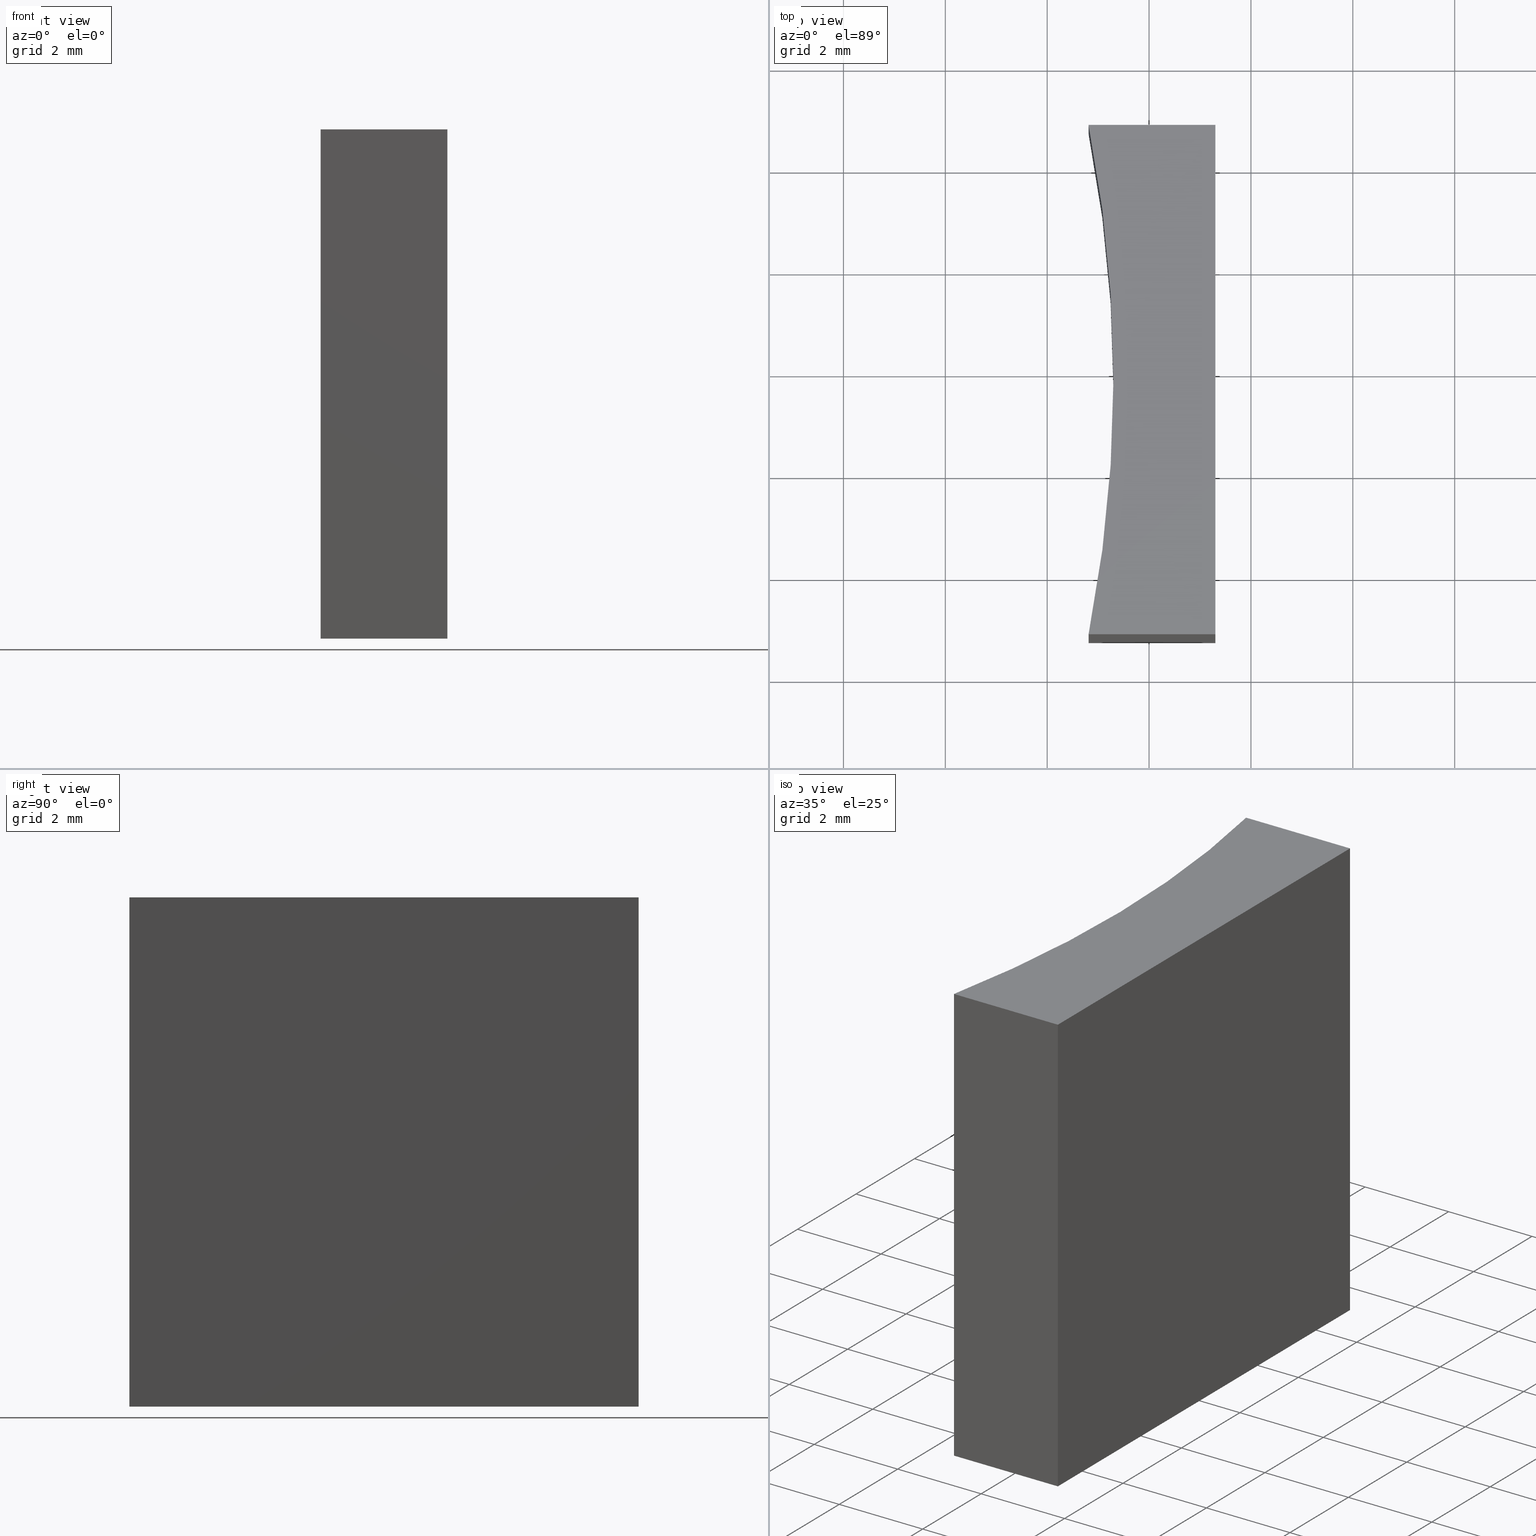
[diagram: canonical four-view strip — front | top / right | iso, engineering-drawing reading convention]
A machine part, canonical four-view strip (front | top / right | iso — engineering-drawing reading convention). The complete STEP part file that produces these views, byte-faithful:
ISO-10303-21;
HEADER;
FILE_DESCRIPTION (( 'STEP AP203' ),
    '1' );
FILE_NAME ('155566.STEP',
    '2024-05-13T05:53:00',
    ( '' ),
    ( '' ),
    'SwSTEP 2.0',
    'SolidWorks 2020',
    '' );
FILE_SCHEMA (( 'CONFIG_CONTROL_DESIGN' ));
ENDSEC;

DATA;
#1 = DIRECTION ( 'NONE',  ( 0.000000000000000000, -0.000000000000000000, -1.000000000000000000 ) ) ;
#2 = APPROVAL_PERSON_ORGANIZATION ( #64, #202, #136 ) ;
#3 =( LENGTH_UNIT ( ) NAMED_UNIT ( * ) SI_UNIT ( .MILLI., .METRE. ) );
#4 = APPROVAL_DATE_TIME ( #208, #202 ) ;
#5 = PERSON_AND_ORGANIZATION_ROLE ( 'classification_officer' ) ;
#6 = APPROVAL_STATUS ( 'not_yet_approved' ) ;
#7 = APPLICATION_CONTEXT ( 'configuration controlled 3d designs of mechanical parts and assemblies' ) ;
#8 = ORIENTED_EDGE ( 'NONE', *, *, #78, .T. ) ;
#9 = CC_DESIGN_PERSON_AND_ORGANIZATION_ASSIGNMENT ( #81, #168, ( #135 ) ) ;
#10 = EDGE_LOOP ( 'NONE', ( #90, #48, #211, #121 ) ) ;
#11 = CLOSED_SHELL ( 'NONE', ( #35, #13, #180, #126, #87, #106 ) ) ;
#12 = ORIENTED_EDGE ( 'NONE', *, *, #55, .F. ) ;
#13 = ADVANCED_FACE ( 'NONE', ( #139 ), #123, .F. ) ;
#14 = EDGE_LOOP ( 'NONE', ( #26, #127, #171, #172 ) ) ;
#15 = CC_DESIGN_APPROVAL ( #18, ( #49 ) ) ;
#16 = EDGE_LOOP ( 'NONE', ( #142, #12, #153, #8 ) ) ;
#17 = LINE ( 'NONE', #20, #134 ) ;
#18 = APPROVAL ( #6, 'δָ��' ) ;
#19 = CARTESIAN_POINT ( 'NONE',  ( 8.812458246586681199, -11.23237824220924530, 0.000000000000000000 ) ) ;
#20 = CARTESIAN_POINT ( 'NONE',  ( 8.812458246586677646, -1.232378242209244856, 0.000000000000000000 ) ) ;
#21 = VECTOR ( 'NONE', #221, 1000.000000000000000 ) ;
#22 = DIRECTION ( 'NONE',  ( -1.000000000000000000, 0.000000000000000000, 0.000000000000000000 ) ) ;
#23 = PERSON_AND_ORGANIZATION ( #53, #175 ) ;
#24 = APPROVAL_STATUS ( 'not_yet_approved' ) ;
#25 = AXIS2_PLACEMENT_3D ( 'NONE', #218, #223, #116 ) ;
#26 = ORIENTED_EDGE ( 'NONE', *, *, #215, .T. ) ;
#27 = DIRECTION ( 'NONE',  ( 0.000000000000000000, 1.000000000000000000, 0.000000000000000000 ) ) ;
#28 = AXIS2_PLACEMENT_3D ( 'NONE', #96, #109, #131 ) ;
#29 = CALENDAR_DATE ( 2024, 13, 5 ) ;
#30 = LOCAL_TIME ( 13, 53, 0.000000000000000000, #151 ) ;
#31 = PLANE ( 'NONE',  #89 ) ;
#32 = DIRECTION ( 'NONE',  ( 1.000000000000000000, 0.000000000000000000, 0.000000000000000000 ) ) ;
#33 = LINE ( 'NONE', #19, #98 ) ;
#34 = FACE_OUTER_BOUND ( 'NONE', #229, .T. ) ;
#35 = ADVANCED_FACE ( 'NONE', ( #70 ), #140, .F. ) ;
#36 = CARTESIAN_POINT ( 'NONE',  ( 8.812458246586677646, -1.232378242209244856, 10.00000000000000000 ) ) ;
#37 =( NAMED_UNIT ( * ) SI_UNIT ( $, .STERADIAN. ) SOLID_ANGLE_UNIT ( ) );
#38 = APPLICATION_PROTOCOL_DEFINITION ( 'international standard', 'config_control_design', 1994, #93 ) ;
#39 = COORDINATED_UNIVERSAL_TIME_OFFSET ( 8, 0, .AHEAD. ) ;
#40 = AXIS2_PLACEMENT_3D ( 'NONE', #190, #27, #155 ) ;
#41 = CALENDAR_DATE ( 2024, 13, 5 ) ;
#42 = PERSON_AND_ORGANIZATION_ROLE ( 'creator' ) ;
#43 = CC_DESIGN_SECURITY_CLASSIFICATION ( #188, ( #104 ) ) ;
#44 = ORIENTED_EDGE ( 'NONE', *, *, #78, .F. ) ;
#45 = ORIENTED_EDGE ( 'NONE', *, *, #102, .T. ) ;
#46 = ORIENTED_EDGE ( 'NONE', *, *, #102, .F. ) ;
#47 = ORIENTED_EDGE ( 'NONE', *, *, #55, .T. ) ;
#48 = ORIENTED_EDGE ( 'NONE', *, *, #141, .F. ) ;
#49 = PRODUCT_DEFINITION ( 'δ֪', '', #104, #203 ) ;
#50 = DIRECTION ( 'NONE',  ( 0.000000000000000000, -1.000000000000000000, 0.000000000000000000 ) ) ;
#51 = DIRECTION ( 'NONE',  ( -0.000000000000000000, -0.000000000000000000, -1.000000000000000000 ) ) ;
#52 = PLANE ( 'NONE',  #192 ) ;
#53 = PERSON ( 'δָ��', 'δָ��', 'δָ��', ('δָ��'), ('δָ��'), ('δָ��') ) ;
#54 = DIRECTION ( 'NONE',  ( 0.000000000000000000, 0.000000000000000000, 1.000000000000000000 ) ) ;
#55 = EDGE_CURVE ( 'NONE', #107, #189, #219, .T. ) ;
#56 = CC_DESIGN_APPROVAL ( #202, ( #104 ) ) ;
#57 = FACE_OUTER_BOUND ( 'NONE', #14, .T. ) ;
#58 = DATE_AND_TIME ( #86, #209 ) ;
#59 = CC_DESIGN_DATE_AND_TIME_ASSIGNMENT ( #58, #228, ( #49 ) ) ;
#60 = APPROVAL_ROLE ( '' ) ;
#61 = APPLICATION_PROTOCOL_DEFINITION ( 'international standard', 'config_control_design', 1994, #7 ) ;
#62 = MANIFOLD_SOLID_BREP ( '͹̨-����1', #11 ) ;
#63 = VECTOR ( 'NONE', #79, 1000.000000000000000 ) ;
#64 = PERSON_AND_ORGANIZATION ( #53, #175 ) ;
#65 = EDGE_CURVE ( 'NONE', #191, #189, #178, .T. ) ;
#66 = APPROVAL_DATE_TIME ( #170, #120 ) ;
#67 = EDGE_LOOP ( 'NONE', ( #231, #46, #232, #157 ) ) ;
#68 = VERTEX_POINT ( 'NONE', #201 ) ;
#69 = VECTOR ( 'NONE', #146, 1000.000000000000000 ) ;
#70 = FACE_OUTER_BOUND ( 'NONE', #10, .T. ) ;
#71 = VERTEX_POINT ( 'NONE', #112 ) ;
#72 = CC_DESIGN_PERSON_AND_ORGANIZATION_ASSIGNMENT ( #205, #42, ( #104 ) ) ;
#73 = DIRECTION ( 'NONE',  ( 1.734723475976807094E-16, -1.000000000000000000, 0.000000000000000000 ) ) ;
#74 = LINE ( 'NONE', #77, #217 ) ;
#75 = DIRECTION ( 'NONE',  ( 1.000000000000000000, 0.000000000000000000, -0.000000000000000000 ) ) ;
#76 = VECTOR ( 'NONE', #179, 1000.000000000000000 ) ;
#77 = CARTESIAN_POINT ( 'NONE',  ( 11.30245824658667964, -11.23237824220924530, 10.00000000000000000 ) ) ;
#78 = EDGE_CURVE ( 'NONE', #214, #191, #74, .T. ) ;
#79 = DIRECTION ( 'NONE',  ( -0.000000000000000000, -0.000000000000000000, -1.000000000000000000 ) ) ;
#80 = VECTOR ( 'NONE', #238, 1000.000000000000000 ) ;
#81 = PERSON_AND_ORGANIZATION ( #53, #175 ) ;
#82 = UNCERTAINTY_MEASURE_WITH_UNIT (LENGTH_MEASURE( 1.000000000000000082E-05 ), #3, 'distance_accuracy_value', 'NONE');
#83 =( NAMED_UNIT ( * ) PLANE_ANGLE_UNIT ( ) SI_UNIT ( $, .RADIAN. ) );
#84 = DATE_TIME_ROLE ( 'classification_date' ) ;
#85 = PERSON_AND_ORGANIZATION ( #53, #175 ) ;
#86 = CALENDAR_DATE ( 2024, 13, 5 ) ;
#87 = ADVANCED_FACE ( 'NONE', ( #57 ), #31, .T. ) ;
#88 = ORIENTED_EDGE ( 'NONE', *, *, #141, .T. ) ;
#89 = AXIS2_PLACEMENT_3D ( 'NONE', #200, #54, #75 ) ;
#90 = ORIENTED_EDGE ( 'NONE', *, *, #235, .T. ) ;
#91 = ORIENTED_EDGE ( 'NONE', *, *, #226, .F. ) ;
#92 = LOCAL_TIME ( 13, 53, 0.000000000000000000, #152 ) ;
#93 = APPLICATION_CONTEXT ( 'configuration controlled 3d designs of mechanical parts and assemblies' ) ;
#94 = CARTESIAN_POINT ( 'NONE',  ( 8.812458246586681199, -11.23237824220924530, 10.00000000000000000 ) ) ;
#95 = DIRECTION ( 'NONE',  ( 1.000000000000000000, 0.000000000000000000, 0.000000000000000000 ) ) ;
#96 = CARTESIAN_POINT ( 'NONE',  ( -16.54937331187928606, -6.232378242209254182, 0.000000000000000000 ) ) ;
#97 = LINE ( 'NONE', #199, #63 ) ;
#98 = VECTOR ( 'NONE', #95, 1000.000000000000000 ) ;
#99 = LINE ( 'NONE', #94, #21 ) ;
#100 = PRODUCT_RELATED_PRODUCT_CATEGORY ( 'detail', '', ( #135 ) ) ;
#101 = APPROVAL_PERSON_ORGANIZATION ( #224, #18, #206 ) ;
#102 = EDGE_CURVE ( 'NONE', #189, #71, #17, .T. ) ;
#103 = PERSON_AND_ORGANIZATION ( #53, #175 ) ;
#104 = PRODUCT_DEFINITION_FORMATION_WITH_SPECIFIED_SOURCE ( '�κ�', '', #135, .NOT_KNOWN. ) ;
#105 = DIRECTION ( 'NONE',  ( 0.000000000000000000, 0.000000000000000000, 1.000000000000000000 ) ) ;
#106 = ADVANCED_FACE ( 'NONE', ( #132 ), #144, .F. ) ;
#107 = VERTEX_POINT ( 'NONE', #237 ) ;
#108 =( GEOMETRIC_REPRESENTATION_CONTEXT ( 3 ) GLOBAL_UNCERTAINTY_ASSIGNED_CONTEXT ( ( #82 ) ) GLOBAL_UNIT_ASSIGNED_CONTEXT ( ( #3, #83, #37 ) ) REPRESENTATION_CONTEXT ( 'NONE', 'WORKASPACE' ) );
#109 = DIRECTION ( 'NONE',  ( 0.000000000000000000, 0.000000000000000000, 1.000000000000000000 ) ) ;
#110 = LINE ( 'NONE', #161, #80 ) ;
#111 = CARTESIAN_POINT ( 'NONE',  ( 11.30245824658667786, -1.232378242209244856, 10.00000000000000000 ) ) ;
#112 = CARTESIAN_POINT ( 'NONE',  ( 8.812458246586677646, -1.232378242209244856, 0.000000000000000000 ) ) ;
#113 = CARTESIAN_POINT ( 'NONE',  ( 11.30245824658667786, -1.232378242209244856, 10.00000000000000000 ) ) ;
#114 = DATE_AND_TIME ( #204, #137 ) ;
#115 = DATE_AND_TIME ( #41, #92 ) ;
#116 = DIRECTION ( 'NONE',  ( 1.000000000000000000, 0.000000000000000000, 0.000000000000000000 ) ) ;
#117 = EDGE_CURVE ( 'NONE', #68, #214, #99, .T. ) ;
#118 = APPROVAL_DATE_TIME ( #115, #18 ) ;
#119 = CALENDAR_DATE ( 2024, 13, 5 ) ;
#120 = APPROVAL ( #24, 'δָ��' ) ;
#121 = ORIENTED_EDGE ( 'NONE', *, *, #226, .T. ) ;
#122 = ADVANCED_BREP_SHAPE_REPRESENTATION ( '155566', ( #62, #195 ), #108 ) ;
#123 = PLANE ( 'NONE',  #40 ) ;
#124 = ORIENTED_EDGE ( 'NONE', *, *, #164, .F. ) ;
#125 = AXIS2_PLACEMENT_3D ( 'NONE', #111, #162, #73 ) ;
#126 = ADVANCED_FACE ( 'NONE', ( #34 ), #52, .F. ) ;
#127 = ORIENTED_EDGE ( 'NONE', *, *, #117, .T. ) ;
#128 = LINE ( 'NONE', #143, #69 ) ;
#129 = CARTESIAN_POINT ( 'NONE',  ( 11.30245824658667964, -11.23237824220924530, 0.000000000000000000 ) ) ;
#130 = DIRECTION ( 'NONE',  ( -0.000000000000000000, -0.000000000000000000, -1.000000000000000000 ) ) ;
#131 = DIRECTION ( 'NONE',  ( 1.000000000000000000, 0.000000000000000000, -0.000000000000000000 ) ) ;
#132 = FACE_OUTER_BOUND ( 'NONE', #67, .T. ) ;
#133 = APPROVAL_STATUS ( 'not_yet_approved' ) ;
#134 = VECTOR ( 'NONE', #181, 1000.000000000000000 ) ;
#135 = PRODUCT ( '155566', '155566', '', ( #167 ) ) ;
#136 = APPROVAL_ROLE ( '' ) ;
#137 = LOCAL_TIME ( 13, 53, 0.000000000000000000, #165 ) ;
#138 = ORIENTED_EDGE ( 'NONE', *, *, #156, .T. ) ;
#139 = FACE_OUTER_BOUND ( 'NONE', #176, .T. ) ;
#140 = CYLINDRICAL_SURFACE ( 'NONE', #185, 25.85000000000000497 ) ;
#141 = EDGE_CURVE ( 'NONE', #68, #234, #97, .T. ) ;
#142 = ORIENTED_EDGE ( 'NONE', *, *, #65, .T. ) ;
#143 = CARTESIAN_POINT ( 'NONE',  ( 11.30245824658667786, -1.232378242209244856, 10.00000000000000000 ) ) ;
#144 = PLANE ( 'NONE',  #28 ) ;
#145 = CARTESIAN_POINT ( 'NONE',  ( 8.812458246586681199, -11.23237824220924530, 0.000000000000000000 ) ) ;
#146 = DIRECTION ( 'NONE',  ( -1.734723475976807094E-16, 1.000000000000000000, -0.000000000000000000 ) ) ;
#147 = LINE ( 'NONE', #36, #227 ) ;
#148 = CC_DESIGN_APPROVAL ( #120, ( #188 ) ) ;
#149 = DIRECTION ( 'NONE',  ( 1.000000000000000000, 0.000000000000000000, 0.000000000000000000 ) ) ;
#150 = PERSON_AND_ORGANIZATION_ROLE ( 'design_supplier' ) ;
#151 = COORDINATED_UNIVERSAL_TIME_OFFSET ( 8, 0, .AHEAD. ) ;
#152 = COORDINATED_UNIVERSAL_TIME_OFFSET ( 8, 0, .AHEAD. ) ;
#153 = ORIENTED_EDGE ( 'NONE', *, *, #207, .F. ) ;
#154 = SHAPE_DEFINITION_REPRESENTATION ( #194, #122 ) ;
#155 = DIRECTION ( 'NONE',  ( 0.000000000000000000, -0.000000000000000000, 1.000000000000000000 ) ) ;
#156 = EDGE_CURVE ( 'NONE', #234, #191, #33, .T. ) ;
#157 = ORIENTED_EDGE ( 'NONE', *, *, #156, .F. ) ;
#158 = FACE_OUTER_BOUND ( 'NONE', #16, .T. ) ;
#159 = CC_DESIGN_PERSON_AND_ORGANIZATION_ASSIGNMENT ( #23, #5, ( #188 ) ) ;
#160 = CARTESIAN_POINT ( 'NONE',  ( 8.812458246586677646, -1.232378242209244856, 10.00000000000000000 ) ) ;
#161 = CARTESIAN_POINT ( 'NONE',  ( 8.812458246586677646, -1.232378242209244856, 10.00000000000000000 ) ) ;
#162 = DIRECTION ( 'NONE',  ( -1.000000000000000000, -1.734723475976807094E-16, 0.000000000000000000 ) ) ;
#163 = CARTESIAN_POINT ( 'NONE',  ( 8.812458246586677646, -1.232378242209244856, 10.00000000000000000 ) ) ;
#164 = EDGE_CURVE ( 'NONE', #107, #193, #147, .T. ) ;
#165 = COORDINATED_UNIVERSAL_TIME_OFFSET ( 8, 0, .AHEAD. ) ;
#166 = AXIS2_PLACEMENT_3D ( 'NONE', #177, #51, #32 ) ;
#167 = MECHANICAL_CONTEXT ( 'NONE', #7, 'mechanical' ) ;
#168 = PERSON_AND_ORGANIZATION_ROLE ( 'design_owner' ) ;
#169 = PERSON_AND_ORGANIZATION ( #53, #175 ) ;
#170 = DATE_AND_TIME ( #29, #30 ) ;
#171 = ORIENTED_EDGE ( 'NONE', *, *, #207, .T. ) ;
#172 = ORIENTED_EDGE ( 'NONE', *, *, #164, .T. ) ;
#173 = VECTOR ( 'NONE', #130, 1000.000000000000000 ) ;
#174 = CC_DESIGN_PERSON_AND_ORGANIZATION_ASSIGNMENT ( #169, #187, ( #49 ) ) ;
#175 = ORGANIZATION ( 'δָ��', 'δָ��', '' ) ;
#176 = EDGE_LOOP ( 'NONE', ( #138, #44, #210, #88 ) ) ;
#177 = CARTESIAN_POINT ( 'NONE',  ( -16.54937331187928606, -6.232378242209254182, 10.00000000000000000 ) ) ;
#178 = LINE ( 'NONE', #197, #76 ) ;
#179 = DIRECTION ( 'NONE',  ( -1.734723475976807094E-16, 1.000000000000000000, -0.000000000000000000 ) ) ;
#180 = ADVANCED_FACE ( 'NONE', ( #158 ), #236, .F. ) ;
#181 = DIRECTION ( 'NONE',  ( -1.000000000000000000, -0.000000000000000000, -0.000000000000000000 ) ) ;
#182 = DIRECTION ( 'NONE',  ( -1.000000000000000000, -0.000000000000000000, -0.000000000000000000 ) ) ;
#183 = CC_DESIGN_DATE_AND_TIME_ASSIGNMENT ( #114, #84, ( #188 ) ) ;
#184 = COORDINATED_UNIVERSAL_TIME_OFFSET ( 8, 0, .AHEAD. ) ;
#185 = AXIS2_PLACEMENT_3D ( 'NONE', #213, #212, #22 ) ;
#186 = SECURITY_CLASSIFICATION_LEVEL ( 'unclassified' ) ;
#187 = PERSON_AND_ORGANIZATION_ROLE ( 'creator' ) ;
#188 = SECURITY_CLASSIFICATION ( '', '', #186 ) ;
#189 = VERTEX_POINT ( 'NONE', #239 ) ;
#190 = CARTESIAN_POINT ( 'NONE',  ( 8.812458246586681199, -11.23237824220924530, 10.00000000000000000 ) ) ;
#191 = VERTEX_POINT ( 'NONE', #129 ) ;
#192 = AXIS2_PLACEMENT_3D ( 'NONE', #163, #50, #1 ) ;
#193 = VERTEX_POINT ( 'NONE', #160 ) ;
#194 = PRODUCT_DEFINITION_SHAPE ( 'NONE', 'NONE',  #49 ) ;
#195 = AXIS2_PLACEMENT_3D ( 'NONE', #225, #105, #149 ) ;
#196 = DIRECTION ( 'NONE',  ( -0.000000000000000000, -0.000000000000000000, -1.000000000000000000 ) ) ;
#197 = CARTESIAN_POINT ( 'NONE',  ( 11.30245824658667786, -1.232378242209244856, 0.000000000000000000 ) ) ;
#198 = CIRCLE ( 'NONE', #166, 25.85000000000000497 ) ;
#199 = CARTESIAN_POINT ( 'NONE',  ( 8.812458246586681199, -11.23237824220924530, 10.00000000000000000 ) ) ;
#200 = CARTESIAN_POINT ( 'NONE',  ( -16.54937331187928606, -6.232378242209254182, 10.00000000000000000 ) ) ;
#201 = CARTESIAN_POINT ( 'NONE',  ( 8.812458246586681199, -11.23237824220924530, 10.00000000000000000 ) ) ;
#202 = APPROVAL ( #133, 'δָ��' ) ;
#203 = DESIGN_CONTEXT ( 'detailed design', #93, 'design' ) ;
#204 = CALENDAR_DATE ( 2024, 13, 5 ) ;
#205 = PERSON_AND_ORGANIZATION ( #53, #175 ) ;
#206 = APPROVAL_ROLE ( '' ) ;
#207 = EDGE_CURVE ( 'NONE', #214, #107, #128, .T. ) ;
#208 = DATE_AND_TIME ( #119, #233 ) ;
#209 = LOCAL_TIME ( 13, 53, 0.000000000000000000, #39 ) ;
#210 = ORIENTED_EDGE ( 'NONE', *, *, #117, .F. ) ;
#211 = ORIENTED_EDGE ( 'NONE', *, *, #215, .F. ) ;
#212 = DIRECTION ( 'NONE',  ( -0.000000000000000000, -0.000000000000000000, -1.000000000000000000 ) ) ;
#213 = CARTESIAN_POINT ( 'NONE',  ( -16.54937331187928606, -6.232378242209254182, 10.00000000000000000 ) ) ;
#214 = VERTEX_POINT ( 'NONE', #216 ) ;
#215 = EDGE_CURVE ( 'NONE', #193, #68, #198, .T. ) ;
#216 = CARTESIAN_POINT ( 'NONE',  ( 11.30245824658667964, -11.23237824220924530, 10.00000000000000000 ) ) ;
#217 = VECTOR ( 'NONE', #196, 1000.000000000000000 ) ;
#218 = CARTESIAN_POINT ( 'NONE',  ( -16.54937331187928606, -6.232378242209254182, 0.000000000000000000 ) ) ;
#219 = LINE ( 'NONE', #113, #173 ) ;
#220 = APPROVAL_PERSON_ORGANIZATION ( #85, #120, #60 ) ;
#221 = DIRECTION ( 'NONE',  ( 1.000000000000000000, 0.000000000000000000, 0.000000000000000000 ) ) ;
#222 = CC_DESIGN_PERSON_AND_ORGANIZATION_ASSIGNMENT ( #103, #150, ( #104 ) ) ;
#223 = DIRECTION ( 'NONE',  ( -0.000000000000000000, -0.000000000000000000, -1.000000000000000000 ) ) ;
#224 = PERSON_AND_ORGANIZATION ( #53, #175 ) ;
#225 = CARTESIAN_POINT ( 'NONE',  ( 0.000000000000000000, 0.000000000000000000, 0.000000000000000000 ) ) ;
#226 = EDGE_CURVE ( 'NONE', #193, #71, #110, .T. ) ;
#227 = VECTOR ( 'NONE', #182, 1000.000000000000000 ) ;
#228 = DATE_TIME_ROLE ( 'creation_date' ) ;
#229 = EDGE_LOOP ( 'NONE', ( #45, #91, #124, #47 ) ) ;
#230 = CIRCLE ( 'NONE', #25, 25.85000000000000497 ) ;
#231 = ORIENTED_EDGE ( 'NONE', *, *, #235, .F. ) ;
#232 = ORIENTED_EDGE ( 'NONE', *, *, #65, .F. ) ;
#233 = LOCAL_TIME ( 13, 53, 0.000000000000000000, #184 ) ;
#234 = VERTEX_POINT ( 'NONE', #145 ) ;
#235 = EDGE_CURVE ( 'NONE', #71, #234, #230, .T. ) ;
#236 = PLANE ( 'NONE',  #125 ) ;
#237 = CARTESIAN_POINT ( 'NONE',  ( 11.30245824658667786, -1.232378242209244856, 10.00000000000000000 ) ) ;
#238 = DIRECTION ( 'NONE',  ( -0.000000000000000000, -0.000000000000000000, -1.000000000000000000 ) ) ;
#239 = CARTESIAN_POINT ( 'NONE',  ( 11.30245824658667786, -1.232378242209244856, 0.000000000000000000 ) ) ;
ENDSEC;
END-ISO-10303-21;
